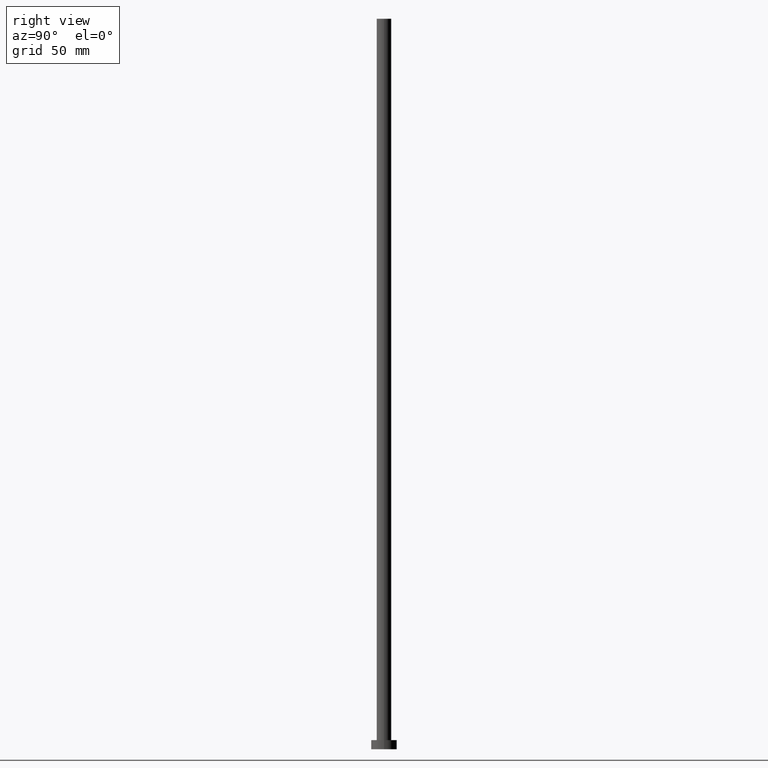
[diagram: clean part render]
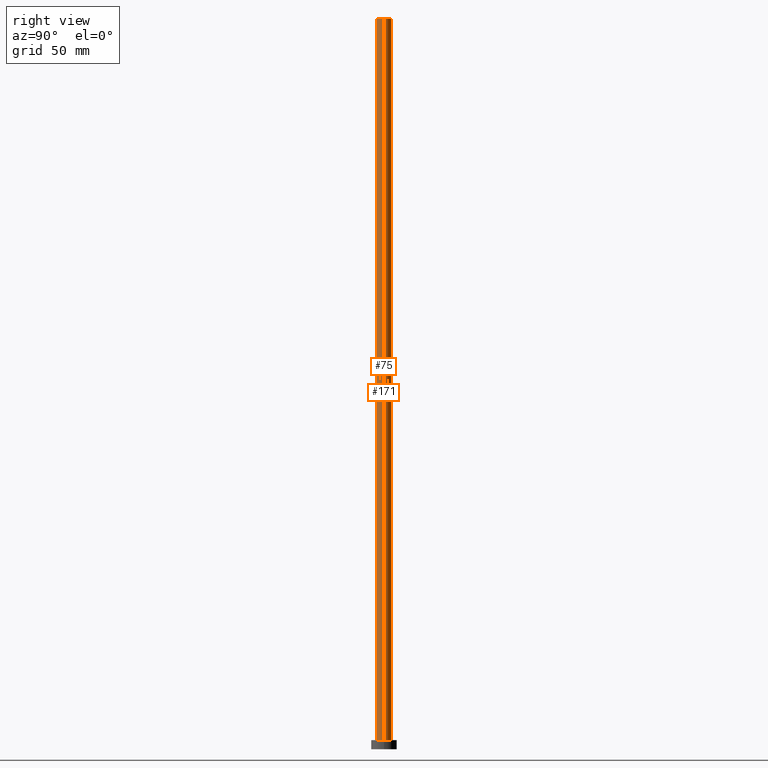
[diagram: same view with one multi-face feature highlighted, each face labeled with its STEP entity id]
A machine part, right view. The highlighted faces form ONE feature: a constant-radius fillet chain: 2 tangent blend faces with common blend radius 4 mm. The faces share edges in the B-rep.
Their STEP definitions:
[1] entity #75 (Cylinder):
#9 = EDGE_CURVE ( 'NONE', #248, #110, #234, .T. ) ;
#10 = CARTESIAN_POINT ( 'NONE',  ( 0.000000000000000000, 0.000000000000000000, 5.000000000000000000 ) ) ;
#14 = CARTESIAN_POINT ( 'NONE',  ( 4.000000000000000000, 4.898587196589411843E-16, 400.0000000000000000 ) ) ;
#21 = CARTESIAN_POINT ( 'NONE',  ( 0.000000000000000000, 0.000000000000000000, 400.0000000000000000 ) ) ;
#27 = CARTESIAN_POINT ( 'NONE',  ( -4.000000000000000000, 0.000000000000000000, 5.000000000000000000 ) ) ;
#29 = AXIS2_PLACEMENT_3D ( 'NONE', #125, #164, #224 ) ;
#72 = EDGE_LOOP ( 'NONE', ( #119, #254, #189, #157 ) ) ;
#73 = LINE ( 'NONE', #230, #255 ) ;
#75 = ADVANCED_FACE ( 'NONE', ( #123 ), #86, .T. ) ;
#83 = EDGE_CURVE ( 'NONE', #124, #177, #213, .T. ) ;
#86 = CYLINDRICAL_SURFACE ( 'NONE', #29, 4.000000000000000000 ) ;
#95 = DIRECTION ( 'NONE',  ( -0.000000000000000000, -0.000000000000000000, -1.000000000000000000 ) ) ;
#98 = VECTOR ( 'NONE', #95, 1000.000000000000000 ) ;
#100 = DIRECTION ( 'NONE',  ( 1.000000000000000000, 0.000000000000000000, 0.000000000000000000 ) ) ;
#110 = VERTEX_POINT ( 'NONE', #143 ) ;
#119 = ORIENTED_EDGE ( 'NONE', *, *, #206, .F. ) ;
#123 = FACE_OUTER_BOUND ( 'NONE', #72, .T. ) ;
#124 = VERTEX_POINT ( 'NONE', #27 ) ;
#125 = CARTESIAN_POINT ( 'NONE',  ( 0.000000000000000000, 0.000000000000000000, 400.0000000000000000 ) ) ;
#134 = LINE ( 'NONE', #14, #98 ) ;
#143 = CARTESIAN_POINT ( 'NONE',  ( 4.000000000000000000, 4.898587196589411843E-16, 400.0000000000000000 ) ) ;
#157 = ORIENTED_EDGE ( 'NONE', *, *, #83, .T. ) ;
#160 = DIRECTION ( 'NONE',  ( 0.000000000000000000, 0.000000000000000000, 1.000000000000000000 ) ) ;
#164 = DIRECTION ( 'NONE',  ( -0.000000000000000000, -0.000000000000000000, -1.000000000000000000 ) ) ;
#165 = AXIS2_PLACEMENT_3D ( 'NONE', #21, #160, #100 ) ;
#177 = VERTEX_POINT ( 'NONE', #211 ) ;
#186 = EDGE_CURVE ( 'NONE', #248, #124, #73, .T. ) ;
#189 = ORIENTED_EDGE ( 'NONE', *, *, #186, .T. ) ;
#196 = CARTESIAN_POINT ( 'NONE',  ( -4.000000000000000000, 0.000000000000000000, 400.0000000000000000 ) ) ;
#202 = AXIS2_PLACEMENT_3D ( 'NONE', #10, #220, #222 ) ;
#206 = EDGE_CURVE ( 'NONE', #110, #177, #134, .T. ) ;
#209 = DIRECTION ( 'NONE',  ( -0.000000000000000000, -0.000000000000000000, -1.000000000000000000 ) ) ;
#211 = CARTESIAN_POINT ( 'NONE',  ( 4.000000000000000000, 4.898587196589411843E-16, 5.000000000000000000 ) ) ;
#213 = CIRCLE ( 'NONE', #202, 4.000000000000000000 ) ;
#220 = DIRECTION ( 'NONE',  ( 0.000000000000000000, 0.000000000000000000, 1.000000000000000000 ) ) ;
#222 = DIRECTION ( 'NONE',  ( 1.000000000000000000, 0.000000000000000000, 0.000000000000000000 ) ) ;
#224 = DIRECTION ( 'NONE',  ( -1.000000000000000000, 0.000000000000000000, 0.000000000000000000 ) ) ;
#230 = CARTESIAN_POINT ( 'NONE',  ( -4.000000000000000000, 0.000000000000000000, 400.0000000000000000 ) ) ;
#234 = CIRCLE ( 'NONE', #165, 4.000000000000000000 ) ;
#248 = VERTEX_POINT ( 'NONE', #196 ) ;
#254 = ORIENTED_EDGE ( 'NONE', *, *, #9, .F. ) ;
#255 = VECTOR ( 'NONE', #209, 1000.000000000000000 ) ;
[2] entity #171 (Cylinder):
#2 = AXIS2_PLACEMENT_3D ( 'NONE', #251, #115, #41 ) ;
#12 = ORIENTED_EDGE ( 'NONE', *, *, #139, .F. ) ;
#14 = CARTESIAN_POINT ( 'NONE',  ( 4.000000000000000000, 4.898587196589411843E-16, 400.0000000000000000 ) ) ;
#15 = DIRECTION ( 'NONE',  ( 0.000000000000000000, 0.000000000000000000, 1.000000000000000000 ) ) ;
#27 = CARTESIAN_POINT ( 'NONE',  ( -4.000000000000000000, 0.000000000000000000, 5.000000000000000000 ) ) ;
#34 = DIRECTION ( 'NONE',  ( 1.000000000000000000, 0.000000000000000000, 0.000000000000000000 ) ) ;
#41 = DIRECTION ( 'NONE',  ( 1.000000000000000000, 0.000000000000000000, 0.000000000000000000 ) ) ;
#50 = AXIS2_PLACEMENT_3D ( 'NONE', #145, #15, #34 ) ;
#57 = CARTESIAN_POINT ( 'NONE',  ( 0.000000000000000000, 0.000000000000000000, 400.0000000000000000 ) ) ;
#71 = ORIENTED_EDGE ( 'NONE', *, *, #206, .T. ) ;
#73 = LINE ( 'NONE', #230, #255 ) ;
#95 = DIRECTION ( 'NONE',  ( -0.000000000000000000, -0.000000000000000000, -1.000000000000000000 ) ) ;
#98 = VECTOR ( 'NONE', #95, 1000.000000000000000 ) ;
#110 = VERTEX_POINT ( 'NONE', #143 ) ;
#115 = DIRECTION ( 'NONE',  ( 0.000000000000000000, 0.000000000000000000, 1.000000000000000000 ) ) ;
#120 = CIRCLE ( 'NONE', #50, 4.000000000000000000 ) ;
#124 = VERTEX_POINT ( 'NONE', #27 ) ;
#134 = LINE ( 'NONE', #14, #98 ) ;
#139 = EDGE_CURVE ( 'NONE', #110, #248, #120, .T. ) ;
#143 = CARTESIAN_POINT ( 'NONE',  ( 4.000000000000000000, 4.898587196589411843E-16, 400.0000000000000000 ) ) ;
#145 = CARTESIAN_POINT ( 'NONE',  ( 0.000000000000000000, 0.000000000000000000, 400.0000000000000000 ) ) ;
#147 = CYLINDRICAL_SURFACE ( 'NONE', #236, 4.000000000000000000 ) ;
#156 = DIRECTION ( 'NONE',  ( -1.000000000000000000, 0.000000000000000000, 0.000000000000000000 ) ) ;
#170 = ORIENTED_EDGE ( 'NONE', *, *, #233, .T. ) ;
#171 = ADVANCED_FACE ( 'NONE', ( #175 ), #147, .T. ) ;
#175 = FACE_OUTER_BOUND ( 'NONE', #252, .T. ) ;
#177 = VERTEX_POINT ( 'NONE', #211 ) ;
#180 = CIRCLE ( 'NONE', #2, 4.000000000000000000 ) ;
#186 = EDGE_CURVE ( 'NONE', #248, #124, #73, .T. ) ;
#196 = CARTESIAN_POINT ( 'NONE',  ( -4.000000000000000000, 0.000000000000000000, 400.0000000000000000 ) ) ;
#206 = EDGE_CURVE ( 'NONE', #110, #177, #134, .T. ) ;
#209 = DIRECTION ( 'NONE',  ( -0.000000000000000000, -0.000000000000000000, -1.000000000000000000 ) ) ;
#211 = CARTESIAN_POINT ( 'NONE',  ( 4.000000000000000000, 4.898587196589411843E-16, 5.000000000000000000 ) ) ;
#227 = ORIENTED_EDGE ( 'NONE', *, *, #186, .F. ) ;
#228 = DIRECTION ( 'NONE',  ( -0.000000000000000000, -0.000000000000000000, -1.000000000000000000 ) ) ;
#230 = CARTESIAN_POINT ( 'NONE',  ( -4.000000000000000000, 0.000000000000000000, 400.0000000000000000 ) ) ;
#233 = EDGE_CURVE ( 'NONE', #177, #124, #180, .T. ) ;
#236 = AXIS2_PLACEMENT_3D ( 'NONE', #57, #228, #156 ) ;
#248 = VERTEX_POINT ( 'NONE', #196 ) ;
#251 = CARTESIAN_POINT ( 'NONE',  ( 0.000000000000000000, 0.000000000000000000, 5.000000000000000000 ) ) ;
#252 = EDGE_LOOP ( 'NONE', ( #12, #71, #170, #227 ) ) ;
#255 = VECTOR ( 'NONE', #209, 1000.000000000000000 ) ;